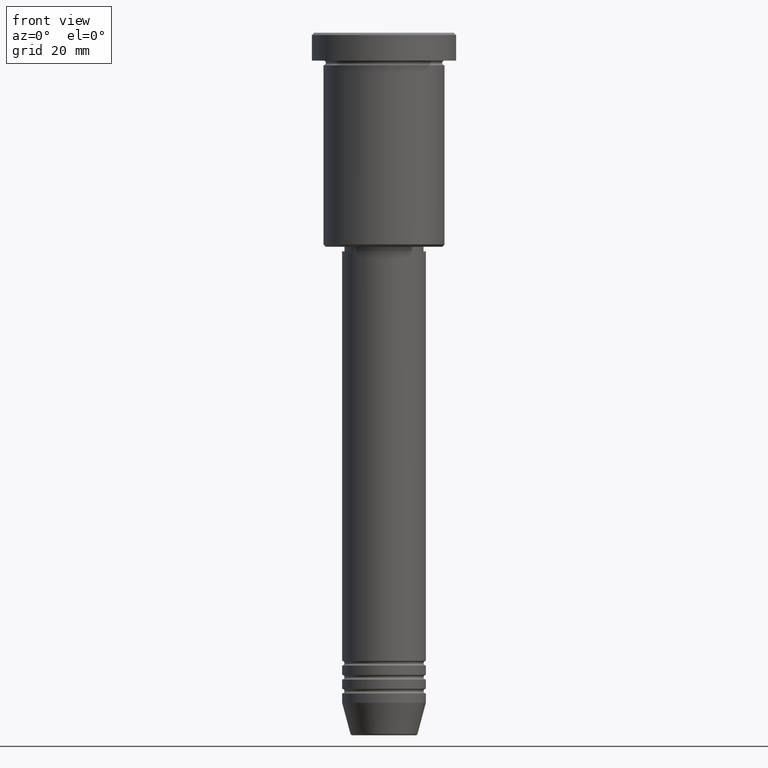
[diagram: clean part render]
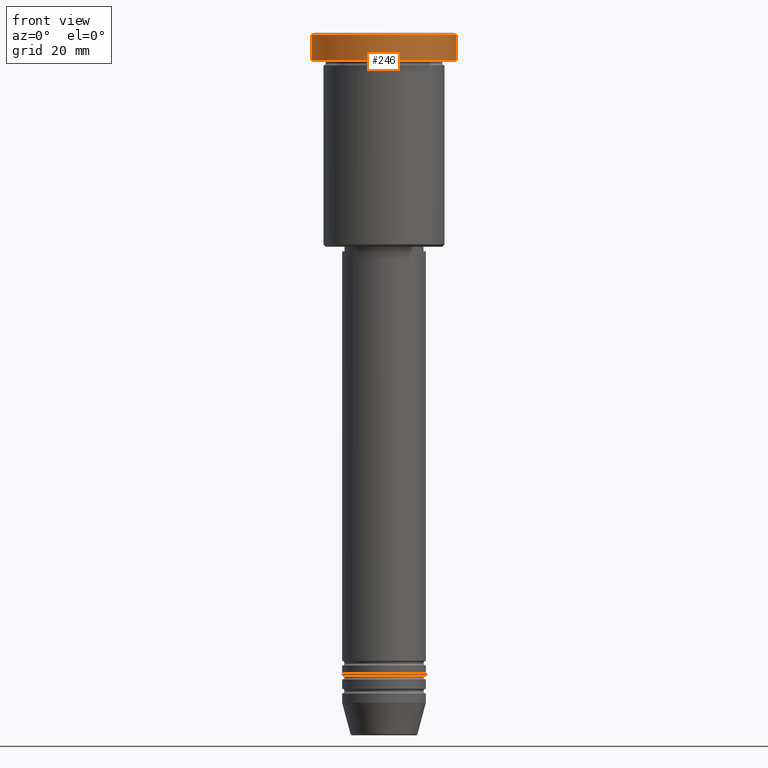
[diagram: same view with one face highlighted and labeled with its STEP entity id]
A machine part, front view. The second image highlights one B-rep face of the part: STEP entity #246.
In plain terms, the highlighted cylindrical surface (partial cylindrical patch) has radius 15.5 mm, axis along (-0, -0, 1).
Its self-contained STEP definition (entity closure, byte-faithful):
#49 = DIRECTION ( 'NONE',  ( 1.000000000000000000, 0.000000000000000000, 0.000000000000000000 ) ) ;
#106 = EDGE_CURVE ( 'NONE', #1139, #542, #148, .T. ) ;
#142 = CARTESIAN_POINT ( 'NONE',  ( 15.50000000000000000, 0.000000000000000000, 0.000000000000000000 ) ) ;
#145 = EDGE_CURVE ( 'NONE', #1115, #585, #1056, .T. ) ;
#148 = CIRCLE ( 'NONE', #808, 15.50000000000000000 ) ;
#164 = CARTESIAN_POINT ( 'NONE',  ( 0.000000000000000000, 0.000000000000000000, 0.000000000000000000 ) ) ;
#206 = CARTESIAN_POINT ( 'NONE',  ( -15.50000000000000000, 1.898202538678397557E-15, -5.999999999999995559 ) ) ;
#217 = ORIENTED_EDGE ( 'NONE', *, *, #967, .F. ) ;
#246 = ADVANCED_FACE ( 'NONE', ( #421 ), #1066, .T. ) ;
#262 = DIRECTION ( 'NONE',  ( -0.000000000000000000, -0.000000000000000000, 1.000000000000000000 ) ) ;
#294 = ORIENTED_EDGE ( 'NONE', *, *, #106, .T. ) ;
#361 = AXIS2_PLACEMENT_3D ( 'NONE', #164, #1046, #49 ) ;
#397 = DIRECTION ( 'NONE',  ( 1.000000000000000000, 0.000000000000000000, 0.000000000000000000 ) ) ;
#421 = FACE_OUTER_BOUND ( 'NONE', #990, .T. ) ;
#430 = DIRECTION ( 'NONE',  ( -0.000000000000000000, -0.000000000000000000, 1.000000000000000000 ) ) ;
#441 = LINE ( 'NONE', #807, #971 ) ;
#479 = CARTESIAN_POINT ( 'NONE',  ( 15.50000000000000000, 0.000000000000000000, -5.999999999999995559 ) ) ;
#542 = VERTEX_POINT ( 'NONE', #479 ) ;
#585 = VERTEX_POINT ( 'NONE', #674 ) ;
#631 = DIRECTION ( 'NONE',  ( 1.000000000000000000, 0.000000000000000000, 0.000000000000000000 ) ) ;
#634 = ORIENTED_EDGE ( 'NONE', *, *, #145, .T. ) ;
#644 = ORIENTED_EDGE ( 'NONE', *, *, #831, .T. ) ;
#674 = CARTESIAN_POINT ( 'NONE',  ( -15.50000000000000000, 1.898202538678397557E-15, -0.4999999999999848455 ) ) ;
#700 = DIRECTION ( 'NONE',  ( -0.000000000000000000, -0.000000000000000000, 1.000000000000000000 ) ) ;
#718 = CARTESIAN_POINT ( 'NONE',  ( 0.000000000000000000, 0.000000000000000000, -5.999999999999995559 ) ) ;
#807 = CARTESIAN_POINT ( 'NONE',  ( -15.50000000000000000, 1.898202538678397557E-15, 0.000000000000000000 ) ) ;
#808 = AXIS2_PLACEMENT_3D ( 'NONE', #718, #262, #631 ) ;
#827 = CARTESIAN_POINT ( 'NONE',  ( 15.50000000000000000, 0.000000000000000000, -0.4999999999999848455 ) ) ;
#831 = EDGE_CURVE ( 'NONE', #542, #1115, #960, .T. ) ;
#887 = AXIS2_PLACEMENT_3D ( 'NONE', #934, #1017, #397 ) ;
#934 = CARTESIAN_POINT ( 'NONE',  ( 0.000000000000000000, 0.000000000000000000, -0.4999999999999848455 ) ) ;
#960 = LINE ( 'NONE', #142, #1153 ) ;
#967 = EDGE_CURVE ( 'NONE', #1139, #585, #441, .T. ) ;
#971 = VECTOR ( 'NONE', #430, 1000.000000000000000 ) ;
#990 = EDGE_LOOP ( 'NONE', ( #217, #294, #644, #634 ) ) ;
#1017 = DIRECTION ( 'NONE',  ( 0.000000000000000000, 0.000000000000000000, -1.000000000000000000 ) ) ;
#1046 = DIRECTION ( 'NONE',  ( -0.000000000000000000, -0.000000000000000000, 1.000000000000000000 ) ) ;
#1056 = CIRCLE ( 'NONE', #887, 15.50000000000000000 ) ;
#1066 = CYLINDRICAL_SURFACE ( 'NONE', #361, 15.50000000000000000 ) ;
#1115 = VERTEX_POINT ( 'NONE', #827 ) ;
#1139 = VERTEX_POINT ( 'NONE', #206 ) ;
#1153 = VECTOR ( 'NONE', #700, 1000.000000000000000 ) ;